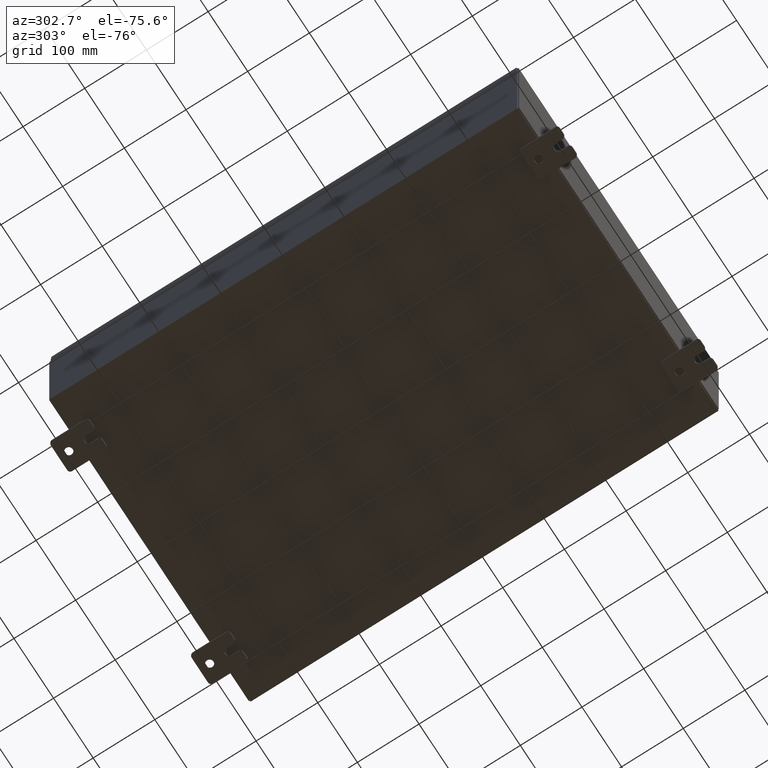
[diagram: clean part render]
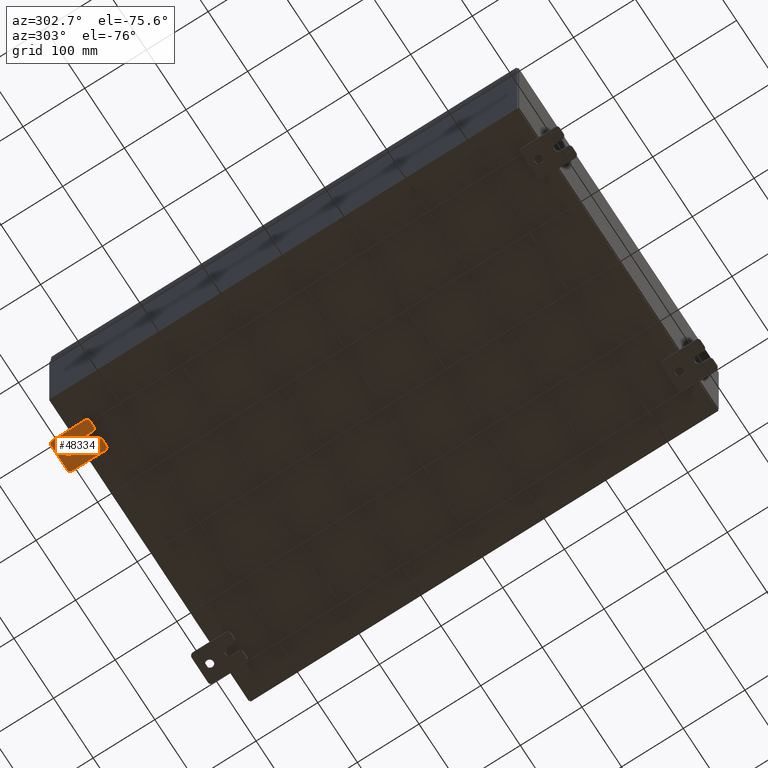
[diagram: same view with one face highlighted and labeled with its STEP entity id]
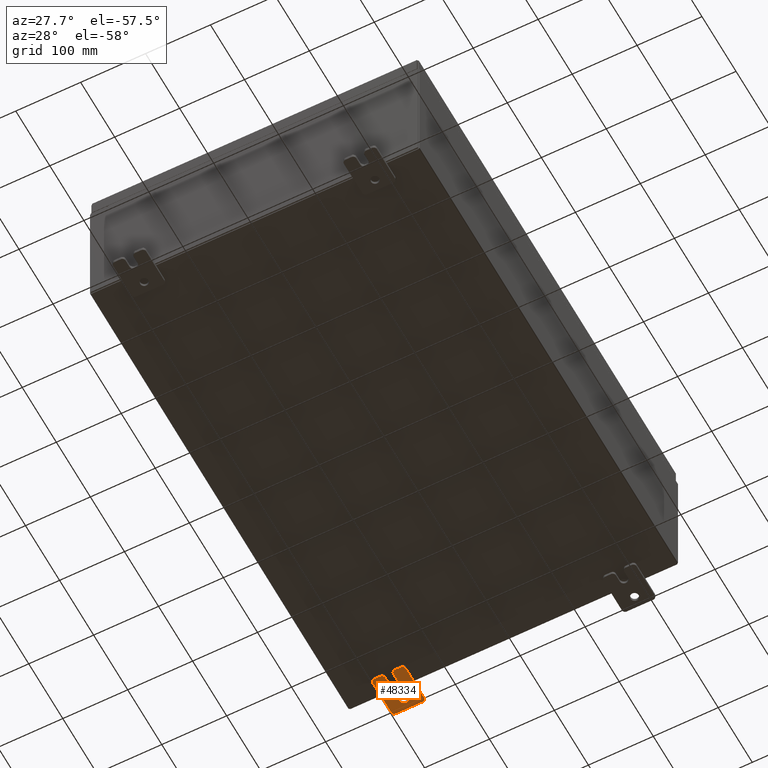
[diagram: same view with one face highlighted and labeled with its STEP entity id]
A machine part, auxiliary view. The second image highlights one B-rep face of the part: STEP entity #48334.
A second angle (auxiliary view) of the same face is appended — the face is thin or edge-on in the first view.
In plain terms, the highlighted planar face has unit normal (0, 0, 1).
Its self-contained STEP definition (entity closure, byte-faithful):
#162 = CIRCLE ( 'NONE', #36572, 0.1900000000000011100 ) ;
#498 = EDGE_CURVE ( 'NONE', #59265, #21452, #17946, .T. ) ;
#741 = CARTESIAN_POINT ( 'NONE',  ( -0.1880000000000010000, 0.6249999999999992200, -7.703811342100550500E-020 ) ) ;
#1221 = CARTESIAN_POINT ( 'NONE',  ( -0.1879999999999997800, -1.250000000000002200, 0.9999999999999992200 ) ) ;
#2316 = CARTESIAN_POINT ( 'NONE',  ( -0.1879999999999997800, 1.059999999999993600, -0.8100000000000089400 ) ) ;
#3062 = CARTESIAN_POINT ( 'NONE',  ( -0.1880000000000005800, -1.250000000000003800, 0.2500000000000005000 ) ) ;
#3283 = AXIS2_PLACEMENT_3D ( 'NONE', #39037, #9524, #44061 ) ;
#3798 = EDGE_CURVE ( 'NONE', #50880, #55754, #27950, .T. ) ;
#4398 = LINE ( 'NONE', #1221, #30644 ) ;
#4585 = CARTESIAN_POINT ( 'NONE',  ( -0.1879999999999997800, 1.249999999999997600, 0.9999999999999951200 ) ) ;
#4682 = DIRECTION ( 'NONE',  ( 0.0000000000000000000, 0.0000000000000000000, -1.000000000000000000 ) ) ;
#4838 = VECTOR ( 'NONE', #10159, 39.37007874015748100 ) ;
#5769 = DIRECTION ( 'NONE',  ( 0.0000000000000000000, 0.0000000000000000000, -1.000000000000000000 ) ) ;
#6240 = DIRECTION ( 'NONE',  ( 0.0000000000000000000, -1.639108796198553600E-015, -1.000000000000000000 ) ) ;
#7073 = CIRCLE ( 'NONE', #12502, 0.2499999999999999200 ) ;
#7328 = DIRECTION ( 'NONE',  ( 0.0000000000000000000, 0.0000000000000000000, -1.000000000000000000 ) ) ;
#7381 = EDGE_CURVE ( 'NONE', #7717, #39768, #28585, .T. ) ;
#7717 = VERTEX_POINT ( 'NONE', #31373 ) ;
#7913 = DIRECTION ( 'NONE',  ( -0.0000000000000000000, 0.0000000000000000000, -1.000000000000000000 ) ) ;
#8074 = DIRECTION ( 'NONE',  ( 0.0000000000000000000, 1.000000000000000000, -1.639108796198558100E-015 ) ) ;
#8792 = CIRCLE ( 'NONE', #24349, 0.1900000000000011100 ) ;
#8862 = DIRECTION ( 'NONE',  ( -1.000000000000000000, 6.523827964459549700E-016, 5.163192708025532000E-017 ) ) ;
#9524 = DIRECTION ( 'NONE',  ( -1.000000000000000000, -0.0000000000000000000, 0.0000000000000000000 ) ) ;
#9944 = DIRECTION ( 'NONE',  ( -1.000000000000000000, -0.0000000000000000000, 0.0000000000000000000 ) ) ;
#10159 = DIRECTION ( 'NONE',  ( -6.556435184794182400E-016, -1.000000000000000000, -1.639108796198545600E-016 ) ) ;
#10464 = ORIENTED_EDGE ( 'NONE', *, *, #498, .F. ) ;
#10625 = CARTESIAN_POINT ( 'NONE',  ( -0.1879999999999997800, -1.250000000000003100, 0.4400000000000020000 ) ) ;
#12502 = AXIS2_PLACEMENT_3D ( 'NONE', #48261, #18606, #53249 ) ;
#12699 = CARTESIAN_POINT ( 'NONE',  ( -0.1880000000000001900, -0.6249999999999992200, -0.2499999999999998600 ) ) ;
#12894 = CARTESIAN_POINT ( 'NONE',  ( -0.1879999999999997800, 1.059999999999996300, 0.8099999999999938400 ) ) ;
#13486 = EDGE_CURVE ( 'NONE', #7717, #18994, #55349, .T. ) ;
#13621 = ORIENTED_EDGE ( 'NONE', *, *, #19213, .F. ) ;
#16709 = CARTESIAN_POINT ( 'NONE',  ( -0.1879999999999997800, -1.250000000000002200, 0.9999999999999992200 ) ) ;
#17826 = DIRECTION ( 'NONE',  ( 0.0000000000000000000, 0.0000000000000000000, -1.000000000000000000 ) ) ;
#17946 = LINE ( 'NONE', #38205, #4838 ) ;
#18083 = LINE ( 'NONE', #37589, #31194 ) ;
#18606 = DIRECTION ( 'NONE',  ( 1.000000000000000000, -0.0000000000000000000, -5.163192708025532000E-017 ) ) ;
#18806 = CARTESIAN_POINT ( 'NONE',  ( -0.1879999999999997800, 1.059999999999996500, 0.9999999999999953400 ) ) ;
#18944 = CIRCLE ( 'NONE', #44185, 0.1900000000000011100 ) ;
#18994 = VERTEX_POINT ( 'NONE', #28923 ) ;
#19213 = EDGE_CURVE ( 'NONE', #61901, #45845, #49309, .T. ) ;
#19883 = EDGE_LOOP ( 'NONE', ( #25072, #52408, #13621, #40696, #52912, #23620, #39045, #43683, #28875, #30522, #10464, #49155, #38257, #57642 ) ) ;
#20412 = AXIS2_PLACEMENT_3D ( 'NONE', #741, #35295, #5769 ) ;
#21452 = VERTEX_POINT ( 'NONE', #31145 ) ;
#22355 = EDGE_CURVE ( 'NONE', #18994, #59265, #58411, .T. ) ;
#23399 = CARTESIAN_POINT ( 'NONE',  ( -0.1879999999999997800, -1.060000000000001600, 0.8099999999999978300 ) ) ;
#23620 = ORIENTED_EDGE ( 'NONE', *, *, #53769, .T. ) ;
#23686 = EDGE_LOOP ( 'NONE', ( #54746, #28242 ) ) ;
#23771 = CIRCLE ( 'NONE', #61342, 0.1900000000000011100 ) ;
#23966 = VECTOR ( 'NONE', #51332, 39.37007874015748100 ) ;
#24349 = AXIS2_PLACEMENT_3D ( 'NONE', #23399, #58068, #28360 ) ;
#24444 = EDGE_CURVE ( 'NONE', #32864, #45845, #8792, .T. ) ;
#25072 = ORIENTED_EDGE ( 'NONE', *, *, #34043, .F. ) ;
#25076 = CARTESIAN_POINT ( 'NONE',  ( -0.1879999999999997800, -1.250000000000002400, 0.8099999999999980500 ) ) ;
#26031 = VECTOR ( 'NONE', #34130, 39.37007874015748100 ) ;
#26276 = CARTESIAN_POINT ( 'NONE',  ( -0.1879999999999997800, 1.059999999999993400, -1.000000000000010000 ) ) ;
#27114 = CARTESIAN_POINT ( 'NONE',  ( -0.1879999999999997800, -1.060000000000004500, -1.000000000000006400 ) ) ;
#27396 = DIRECTION ( 'NONE',  ( 0.0000000000000000000, 1.639108796198553600E-015, 1.000000000000000000 ) ) ;
#27489 = PLANE ( 'NONE',  #41835 ) ;
#27950 = LINE ( 'NONE', #47153, #61345 ) ;
#28174 = EDGE_CURVE ( 'NONE', #33054, #61023, #7073, .T. ) ;
#28242 = ORIENTED_EDGE ( 'NONE', *, *, #30924, .T. ) ;
#28360 = DIRECTION ( 'NONE',  ( 0.0000000000000000000, 7.189073667537492800E-016, -1.000000000000000000 ) ) ;
#28585 = CIRCLE ( 'NONE', #3283, 0.1900000000000011400 ) ;
#28875 = ORIENTED_EDGE ( 'NONE', *, *, #41921, .F. ) ;
#28895 = VECTOR ( 'NONE', #32595, 39.37007874015748100 ) ;
#28923 = CARTESIAN_POINT ( 'NONE',  ( -0.1880000000000001900, -0.6249999999999992200, 0.2500000000000005000 ) ) ;
#29712 = AXIS2_PLACEMENT_3D ( 'NONE', #38392, #8862, #43383 ) ;
#30522 = ORIENTED_EDGE ( 'NONE', *, *, #30670, .T. ) ;
#30644 = VECTOR ( 'NONE', #6240, 39.37007874015748100 ) ;
#30654 = FACE_OUTER_BOUND ( 'NONE', #19883, .T. ) ;
#30670 = EDGE_CURVE ( 'NONE', #60939, #21452, #49597, .T. ) ;
#30924 = EDGE_CURVE ( 'NONE', #61023, #33054, #34793, .T. ) ;
#31145 = CARTESIAN_POINT ( 'NONE',  ( -0.1880000000000004700, -1.060000000000003400, -0.2499999999999994400 ) ) ;
#31194 = VECTOR ( 'NONE', #8074, 39.37007874015748100 ) ;
#31373 = CARTESIAN_POINT ( 'NONE',  ( -0.1880000000000004700, -1.060000000000002100, 0.2500000000000005000 ) ) ;
#32595 = DIRECTION ( 'NONE',  ( 6.556435184794182400E-016, 1.000000000000000000, 0.0000000000000000000 ) ) ;
#32864 = VERTEX_POINT ( 'NONE', #25076 ) ;
#33054 = VERTEX_POINT ( 'NONE', #51695 ) ;
#34043 = EDGE_CURVE ( 'NONE', #32864, #39768, #4398, .T. ) ;
#34130 = DIRECTION ( 'NONE',  ( 0.0000000000000000000, -1.000000000000000000, 1.639108796198558100E-015 ) ) ;
#34217 = DIRECTION ( 'NONE',  ( -1.000000000000000000, -0.0000000000000000000, 0.0000000000000000000 ) ) ;
#34793 = CIRCLE ( 'NONE', #20412, 0.2499999999999999200 ) ;
#35295 = DIRECTION ( 'NONE',  ( 1.000000000000000000, -0.0000000000000000000, -5.163192708025532000E-017 ) ) ;
#36044 = EDGE_CURVE ( 'NONE', #51510, #55143, #18944, .T. ) ;
#36572 = AXIS2_PLACEMENT_3D ( 'NONE', #2316, #36825, #7328 ) ;
#36825 = DIRECTION ( 'NONE',  ( -1.000000000000000000, -0.0000000000000000000, 0.0000000000000000000 ) ) ;
#37423 = DIRECTION ( 'NONE',  ( 1.000000000000000000, 0.0000000000000000000, -0.0000000000000000000 ) ) ;
#37589 = CARTESIAN_POINT ( 'NONE',  ( -0.1879999999999997800, -1.250000000000005600, -1.000000000000006200 ) ) ;
#37863 = CARTESIAN_POINT ( 'NONE',  ( -0.1880000000000010000, 0.6249999999999992200, 0.2499999999999999200 ) ) ;
#38205 = CARTESIAN_POINT ( 'NONE',  ( -0.1880000000000001900, -0.6249999999999992200, -0.2499999999999993900 ) ) ;
#38257 = ORIENTED_EDGE ( 'NONE', *, *, #13486, .F. ) ;
#38392 = CARTESIAN_POINT ( 'NONE',  ( -0.1880000000000001900, -0.6249999999999992200, 6.829619984160658000E-017 ) ) ;
#39037 = CARTESIAN_POINT ( 'NONE',  ( -0.1879999999999997800, -1.060000000000002100, 0.4400000000000016700 ) ) ;
#39045 = ORIENTED_EDGE ( 'NONE', *, *, #63476, .F. ) ;
#39463 = CARTESIAN_POINT ( 'NONE',  ( -0.1879999999999997800, -1.060000000000004100, -0.8100000000000050500 ) ) ;
#39768 = VERTEX_POINT ( 'NONE', #10625 ) ;
#40359 = CARTESIAN_POINT ( 'NONE',  ( -0.1879999999999997800, -1.250000000000005300, -0.8100000000000047200 ) ) ;
#40470 = CARTESIAN_POINT ( 'NONE',  ( -0.1879999999999997800, -1.060000000000001200, 0.9999999999999988900 ) ) ;
#40696 = ORIENTED_EDGE ( 'NONE', *, *, #59283, .T. ) ;
#41835 = AXIS2_PLACEMENT_3D ( 'NONE', #57209, #37423, #7913 ) ;
#41921 = EDGE_CURVE ( 'NONE', #60939, #55143, #48783, .T. ) ;
#42257 = FACE_BOUND ( 'NONE', #23686, .T. ) ;
#43383 = DIRECTION ( 'NONE',  ( -6.829619984160660000E-016, -1.000000000000000000, 0.0000000000000000000 ) ) ;
#43683 = ORIENTED_EDGE ( 'NONE', *, *, #36044, .T. ) ;
#43689 = CARTESIAN_POINT ( 'NONE',  ( -0.1879999999999997800, 1.249999999999994700, -0.8100000000000092700 ) ) ;
#44061 = DIRECTION ( 'NONE',  ( 0.0000000000000000000, 0.0000000000000000000, -1.000000000000000000 ) ) ;
#44185 = AXIS2_PLACEMENT_3D ( 'NONE', #39463, #9944, #44470 ) ;
#44470 = DIRECTION ( 'NONE',  ( 0.0000000000000000000, 0.0000000000000000000, -1.000000000000000000 ) ) ;
#45845 = VERTEX_POINT ( 'NONE', #40470 ) ;
#47153 = CARTESIAN_POINT ( 'NONE',  ( -0.1879999999999997800, 1.249999999999994200, -1.000000000000010400 ) ) ;
#47469 = DIRECTION ( 'NONE',  ( -1.000000000000000000, -0.0000000000000000000, 0.0000000000000000000 ) ) ;
#47473 = CARTESIAN_POINT ( 'NONE',  ( -0.1879999999999997800, -1.250000000000004700, -0.4400000000000002200 ) ) ;
#48177 = AXIS2_PLACEMENT_3D ( 'NONE', #63967, #34217, #4682 ) ;
#48261 = CARTESIAN_POINT ( 'NONE',  ( -0.1880000000000010000, 0.6249999999999992200, -7.703811342100550500E-020 ) ) ;
#48334 = ADVANCED_FACE ( 'NONE', ( #42257, #30654 ), #27489, .F. ) ;
#48783 = LINE ( 'NONE', #16709, #23966 ) ;
#49155 = ORIENTED_EDGE ( 'NONE', *, *, #22355, .F. ) ;
#49309 = LINE ( 'NONE', #4585, #26031 ) ;
#49597 = CIRCLE ( 'NONE', #48177, 0.1900000000000011100 ) ;
#50880 = VERTEX_POINT ( 'NONE', #43689 ) ;
#51332 = DIRECTION ( 'NONE',  ( 0.0000000000000000000, -1.639108796198553600E-015, -1.000000000000000000 ) ) ;
#51510 = VERTEX_POINT ( 'NONE', #27114 ) ;
#51695 = CARTESIAN_POINT ( 'NONE',  ( -0.1880000000000010000, 0.6249999999999992200, -0.2499999999999999200 ) ) ;
#52408 = ORIENTED_EDGE ( 'NONE', *, *, #24444, .T. ) ;
#52912 = ORIENTED_EDGE ( 'NONE', *, *, #3798, .F. ) ;
#53249 = DIRECTION ( 'NONE',  ( 0.0000000000000000000, 0.0000000000000000000, -1.000000000000000000 ) ) ;
#53618 = VERTEX_POINT ( 'NONE', #26276 ) ;
#53769 = EDGE_CURVE ( 'NONE', #50880, #53618, #162, .T. ) ;
#54746 = ORIENTED_EDGE ( 'NONE', *, *, #28174, .T. ) ;
#55143 = VERTEX_POINT ( 'NONE', #40359 ) ;
#55349 = LINE ( 'NONE', #3062, #28895 ) ;
#55754 = VERTEX_POINT ( 'NONE', #63082 ) ;
#57209 = CARTESIAN_POINT ( 'NONE',  ( -0.1879999999999997800, 0.0000000000000000000, 0.0000000000000000000 ) ) ;
#57642 = ORIENTED_EDGE ( 'NONE', *, *, #7381, .T. ) ;
#58068 = DIRECTION ( 'NONE',  ( -1.000000000000000000, -0.0000000000000000000, 0.0000000000000000000 ) ) ;
#58411 = CIRCLE ( 'NONE', #29712, 0.2499999999999999200 ) ;
#59265 = VERTEX_POINT ( 'NONE', #12699 ) ;
#59283 = EDGE_CURVE ( 'NONE', #61901, #55754, #23771, .T. ) ;
#60939 = VERTEX_POINT ( 'NONE', #47473 ) ;
#61023 = VERTEX_POINT ( 'NONE', #37863 ) ;
#61342 = AXIS2_PLACEMENT_3D ( 'NONE', #12894, #47469, #17826 ) ;
#61345 = VECTOR ( 'NONE', #27396, 39.37007874015748100 ) ;
#61901 = VERTEX_POINT ( 'NONE', #18806 ) ;
#63082 = CARTESIAN_POINT ( 'NONE',  ( -0.1879999999999997800, 1.249999999999997300, 0.8099999999999935000 ) ) ;
#63476 = EDGE_CURVE ( 'NONE', #51510, #53618, #18083, .T. ) ;
#63967 = CARTESIAN_POINT ( 'NONE',  ( -0.1879999999999997800, -1.060000000000003400, -0.4400000000000005000 ) ) ;